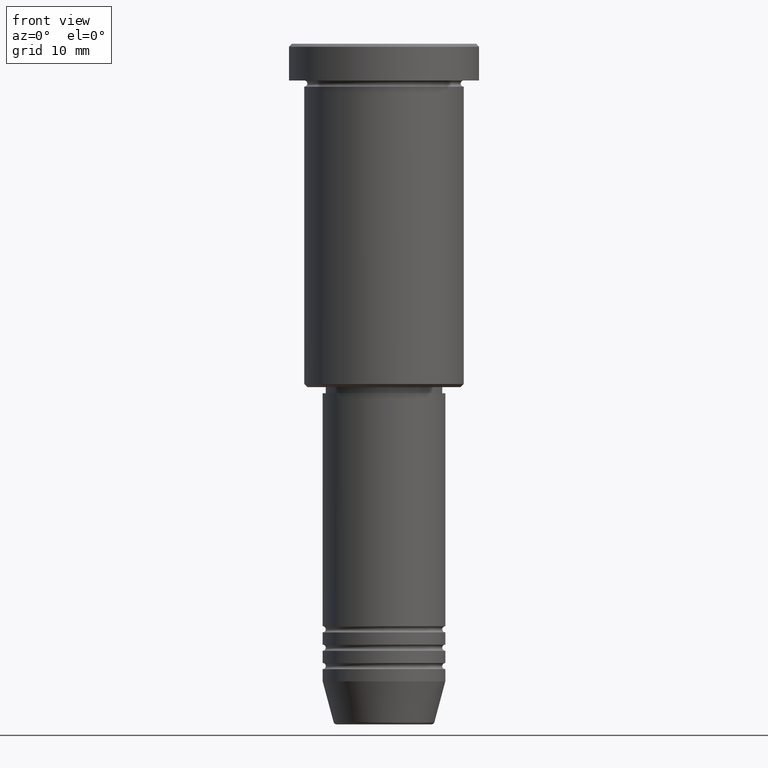
[diagram: clean part render]
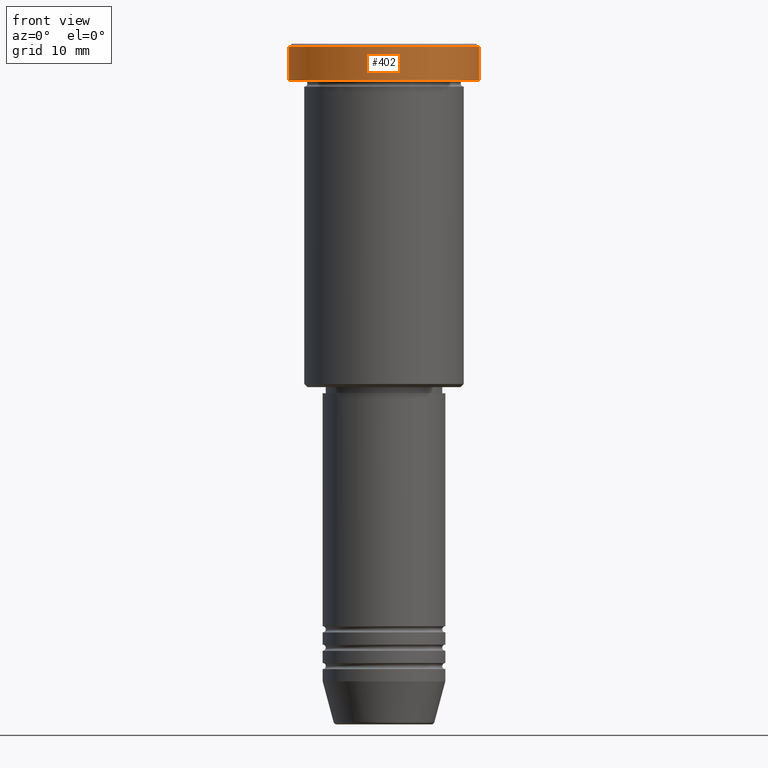
[diagram: same view with one face highlighted and labeled with its STEP entity id]
A machine part, front view. The second image highlights one B-rep face of the part: STEP entity #402.
In plain terms, the highlighted cylindrical surface (partial cylindrical patch) has radius 15.5 mm, axis along (-0, -0, 1).
Its self-contained STEP definition (entity closure, byte-faithful):
#130 = ORIENTED_EDGE ( 'NONE', *, *, #973, .T. ) ;
#138 = DIRECTION ( 'NONE',  ( -0.000000000000000000, -0.000000000000000000, 1.000000000000000000 ) ) ;
#140 = DIRECTION ( 'NONE',  ( 0.000000000000000000, 0.000000000000000000, -1.000000000000000000 ) ) ;
#217 = EDGE_CURVE ( 'NONE', #799, #1136, #717, .T. ) ;
#226 = CARTESIAN_POINT ( 'NONE',  ( 0.000000000000000000, 0.000000000000000000, -0.5000000000000125455 ) ) ;
#235 = DIRECTION ( 'NONE',  ( 1.000000000000000000, 0.000000000000000000, 0.000000000000000000 ) ) ;
#259 = ORIENTED_EDGE ( 'NONE', *, *, #714, .T. ) ;
#285 = DIRECTION ( 'NONE',  ( -0.000000000000000000, -0.000000000000000000, 1.000000000000000000 ) ) ;
#290 = CARTESIAN_POINT ( 'NONE',  ( 15.50000000000000000, 0.000000000000000000, -0.5000000000000125455 ) ) ;
#304 = LINE ( 'NONE', #1035, #394 ) ;
#337 = AXIS2_PLACEMENT_3D ( 'NONE', #226, #140, #879 ) ;
#365 = CARTESIAN_POINT ( 'NONE',  ( 15.50000000000000000, 0.000000000000000000, -5.999999999999995559 ) ) ;
#394 = VECTOR ( 'NONE', #576, 1000.000000000000000 ) ;
#402 = ADVANCED_FACE ( 'NONE', ( #424 ), #1065, .T. ) ;
#424 = FACE_OUTER_BOUND ( 'NONE', #768, .T. ) ;
#491 = CARTESIAN_POINT ( 'NONE',  ( -15.50000000000000000, 1.898202538678397557E-15, -5.999999999999995559 ) ) ;
#497 = CARTESIAN_POINT ( 'NONE',  ( -15.50000000000000000, 1.898202538678397557E-15, -0.5000000000000125455 ) ) ;
#504 = CIRCLE ( 'NONE', #337, 15.50000000000000000 ) ;
#540 = VERTEX_POINT ( 'NONE', #290 ) ;
#571 = VERTEX_POINT ( 'NONE', #497 ) ;
#576 = DIRECTION ( 'NONE',  ( -0.000000000000000000, -0.000000000000000000, 1.000000000000000000 ) ) ;
#591 = ORIENTED_EDGE ( 'NONE', *, *, #924, .F. ) ;
#631 = CARTESIAN_POINT ( 'NONE',  ( 15.50000000000000000, 0.000000000000000000, 0.000000000000000000 ) ) ;
#637 = CARTESIAN_POINT ( 'NONE',  ( 0.000000000000000000, 0.000000000000000000, -5.999999999999995559 ) ) ;
#714 = EDGE_CURVE ( 'NONE', #540, #571, #504, .T. ) ;
#717 = CIRCLE ( 'NONE', #908, 15.50000000000000000 ) ;
#747 = DIRECTION ( 'NONE',  ( 1.000000000000000000, 0.000000000000000000, 0.000000000000000000 ) ) ;
#768 = EDGE_LOOP ( 'NONE', ( #591, #993, #130, #259 ) ) ;
#799 = VERTEX_POINT ( 'NONE', #491 ) ;
#879 = DIRECTION ( 'NONE',  ( 1.000000000000000000, 0.000000000000000000, 0.000000000000000000 ) ) ;
#908 = AXIS2_PLACEMENT_3D ( 'NONE', #637, #285, #747 ) ;
#924 = EDGE_CURVE ( 'NONE', #799, #571, #304, .T. ) ;
#968 = VECTOR ( 'NONE', #138, 1000.000000000000000 ) ;
#973 = EDGE_CURVE ( 'NONE', #1136, #540, #1083, .T. ) ;
#993 = ORIENTED_EDGE ( 'NONE', *, *, #217, .T. ) ;
#1035 = CARTESIAN_POINT ( 'NONE',  ( -15.50000000000000000, 1.898202538678397557E-15, 0.000000000000000000 ) ) ;
#1065 = CYLINDRICAL_SURFACE ( 'NONE', #1137, 15.50000000000000000 ) ;
#1083 = LINE ( 'NONE', #631, #968 ) ;
#1136 = VERTEX_POINT ( 'NONE', #365 ) ;
#1137 = AXIS2_PLACEMENT_3D ( 'NONE', #1150, #1165, #235 ) ;
#1150 = CARTESIAN_POINT ( 'NONE',  ( 0.000000000000000000, 0.000000000000000000, 0.000000000000000000 ) ) ;
#1165 = DIRECTION ( 'NONE',  ( -0.000000000000000000, -0.000000000000000000, 1.000000000000000000 ) ) ;